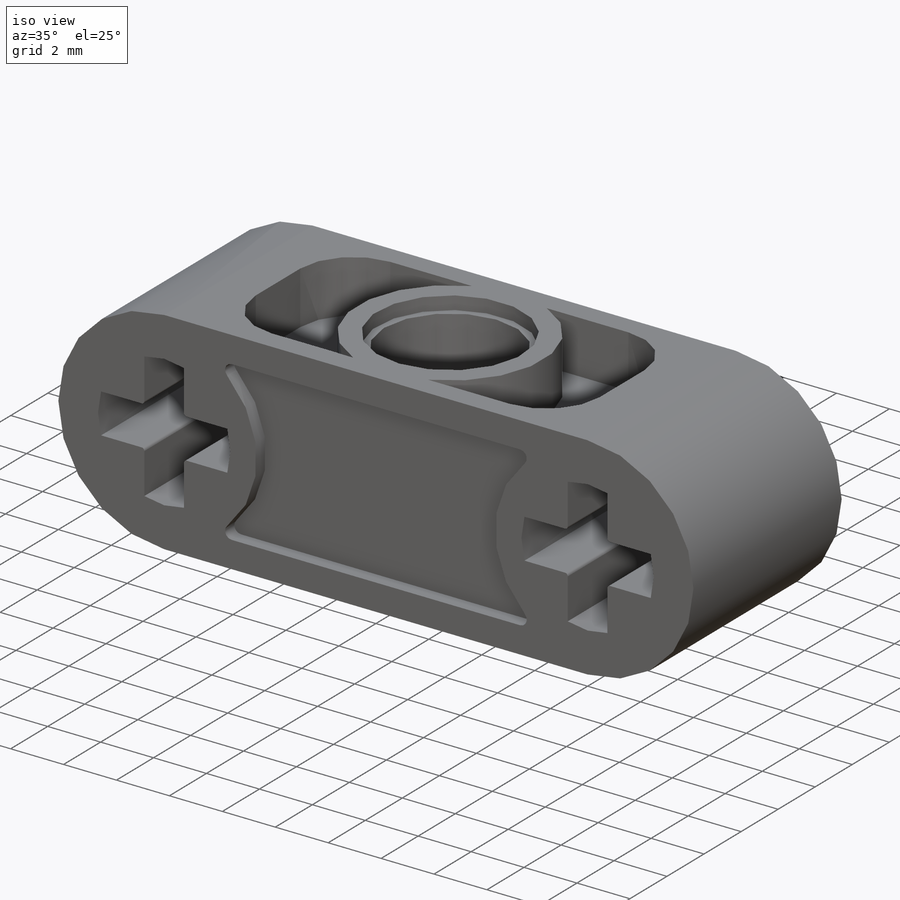
[diagram: iso view]
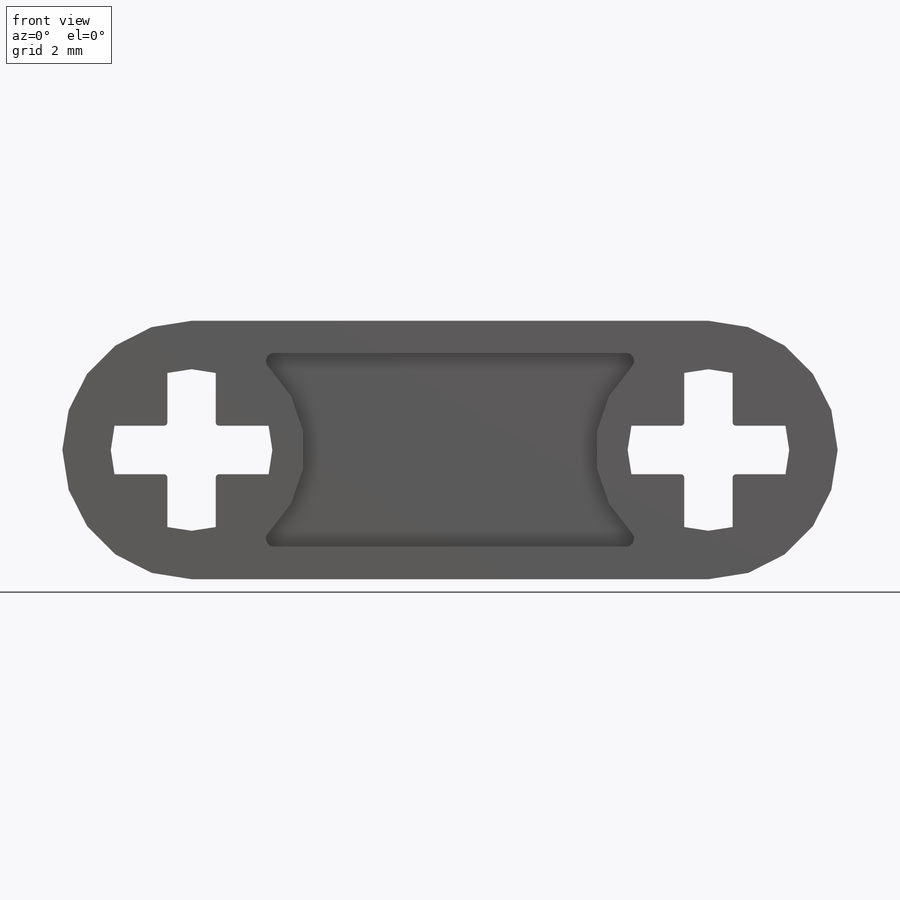
[diagram: front view]
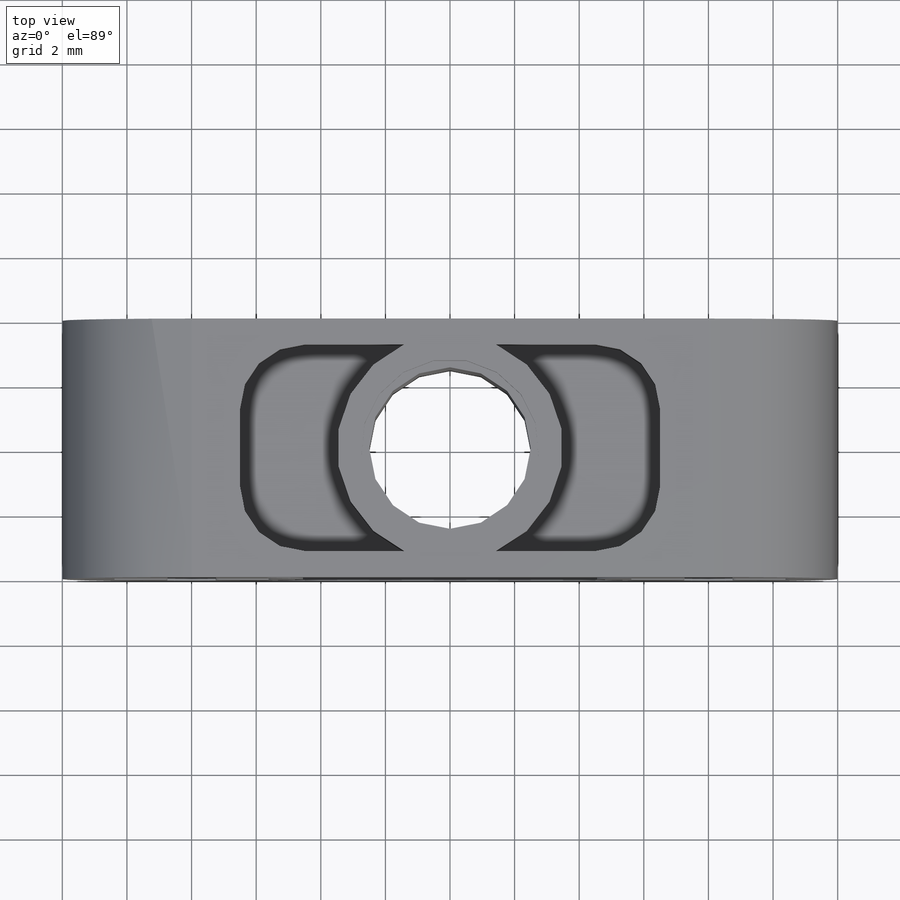
[diagram: top view]
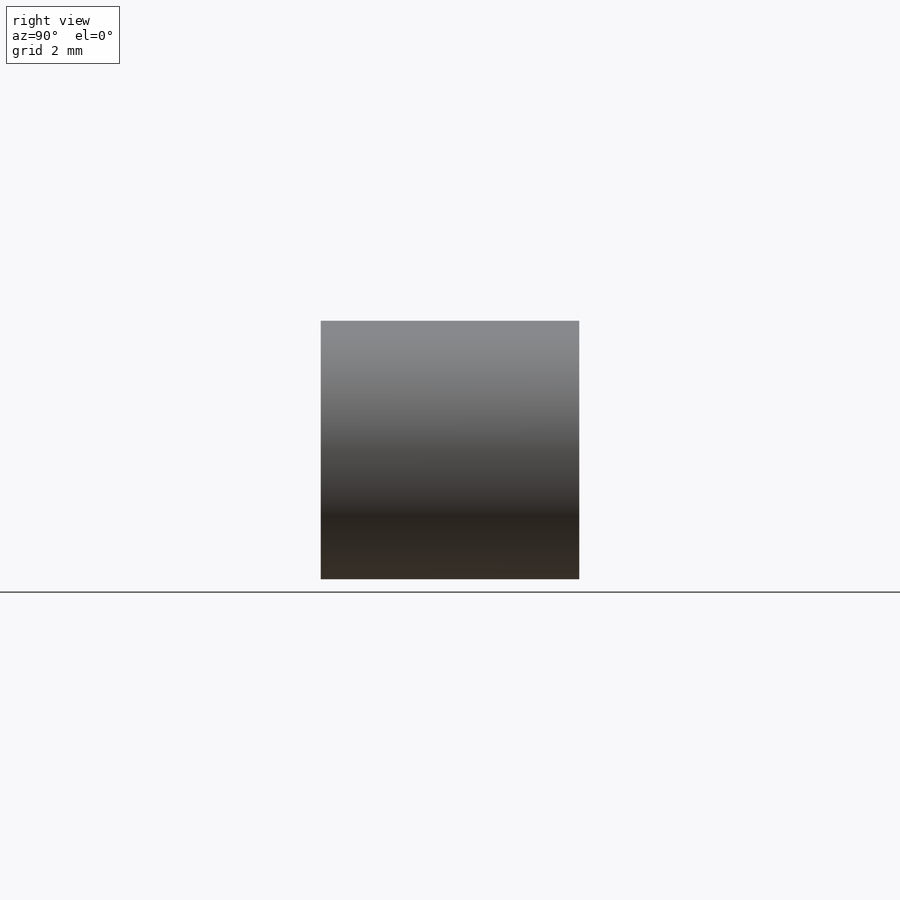
[diagram: right view]
SOLIDWORKS PART (.sldprt)
format: sldprt  version: not decoded by parser v0  size: 321,536 bytes
history: native  units: mm
features: sketch x5, cut_extrude x4, mirror x4, plane x3, material x1, extrude x1, fillet x1 (+12 scaffold rows collapsed)
feature tree (31):
  scaffold x12  (default folders/planes/origin — collapsed)
  material  "Material <not specified>"
  plane  "Alzado"
  plane  "Planta"
  plane  "Vista lateral"
  sketch  "Croquis1"  dims[D3=2.5mm D6=0.1mm D1=16.0mm D2=8.0mm D4=1.5mm D5=1.5mm]
  extrude  "Extruir1"  Depth=8mm
  sketch  "Croquis2"  dims[D1=5.0mm]
  cut_extrude  "Cortar-Extruir1"  [1 undecoded]
  sketch  "Croquis3"  dims[D1=5.5mm]
  cut_extrude  "Cortar-Extruir2"  Depth=0.5mm
  mirror  "Simetría1"
  sketch  "Croquis4"  dims[D1=3.5mm D2=1.5mm D3=0.8mm D4=0.8mm]
  cut_extrude  "Cortar-Extruir3"  Depth=2mm
  mirror  "Simetría2"
  mirror  "Simetría3"
  fillet  "Redondeo1"  Radius=2mm
  sketch  "Croquis5"  dims[D1=0.25mm D3=3.5mm D2=1.0mm]
  cut_extrude  "Cortar-Extruir4"  Depth=0.5mm
  mirror  "Simetría4"
decode coverage: 10 of 15 modeling features carry decoded parameters
note: 1 parameter value undecoded
note: suppression state not decoded; provenance and decode notes live in map.json
